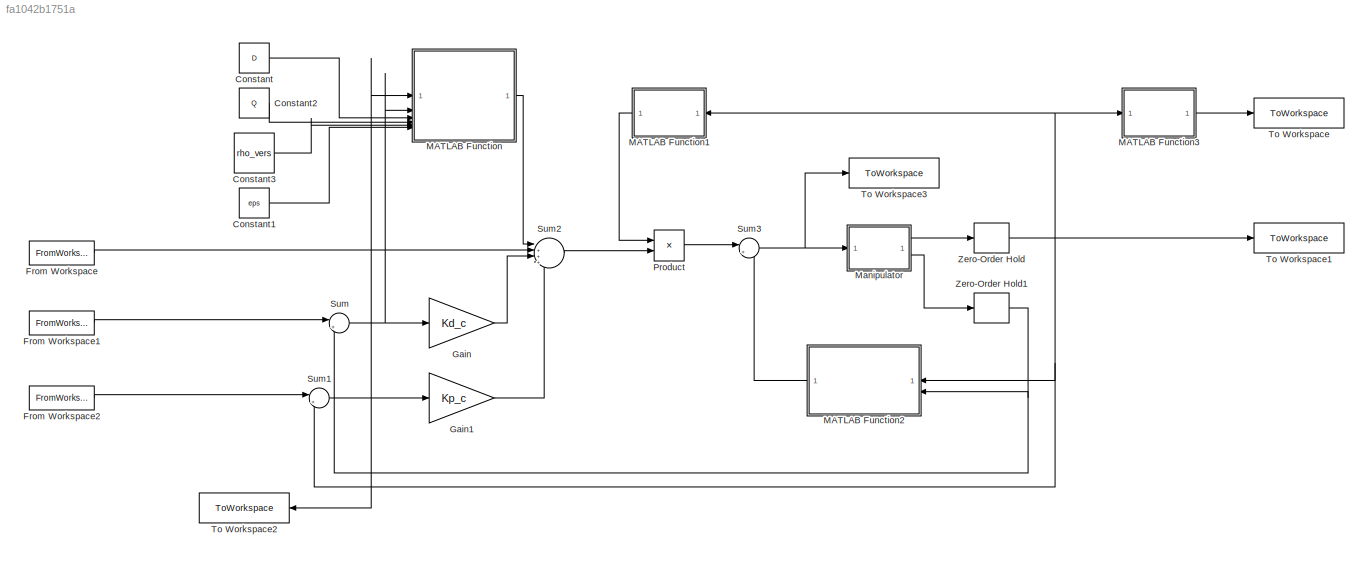
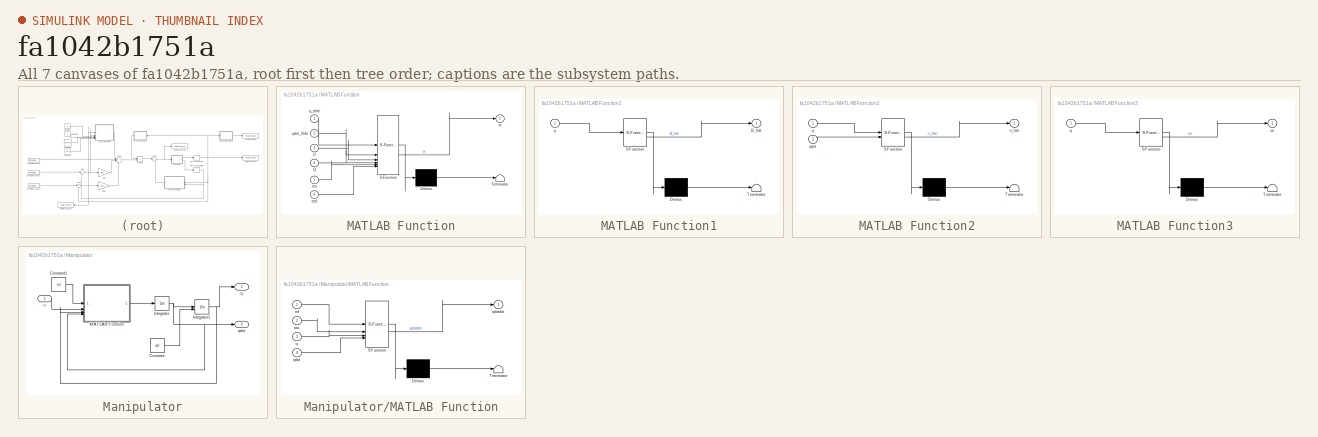
[diagram: thumbnail index - all 7 canvases of the model, root first then tree order]
MODEL slx_fa1042b1751a
KIND model
CONFIG AbsTol = auto
CONFIG EnableMultiTasking = off
CONFIG FixedStep = auto
CONFIG MaxStep = auto
CONFIG MinStep = auto
CONFIG RelTol = 1e-3
CONFIG SampleTimeConstraint = Unconstrained
CONFIG SolverName = VariableStepAuto
CONFIG StartTime = 0.0
CONFIG StopTime = 50
BLOCK [Constant] Constant
  Value = D
BLOCK [Constant] Constant1
  Value = eps
BLOCK [Constant] Constant2
  Value = Q
BLOCK [Constant] Constant3
  Value = rho_vers
BLOCK [FromWorkspace] From Workspace
  SampleTime = Tc
  VariableName = qddotdot
BLOCK [FromWorkspace] From Workspace1
  SampleTime = Tc
  VariableName = qddot
BLOCK [FromWorkspace] From Workspace2
  SampleTime = Tc
  VariableName = qd
BLOCK [Gain] Gain
  Gain = Kd_c
  Multiplication = Matrix(K*u) (u vector)
BLOCK [Gain] Gain1
  Gain = Kp_c
  Multiplication = Matrix(K*u) (u vector)
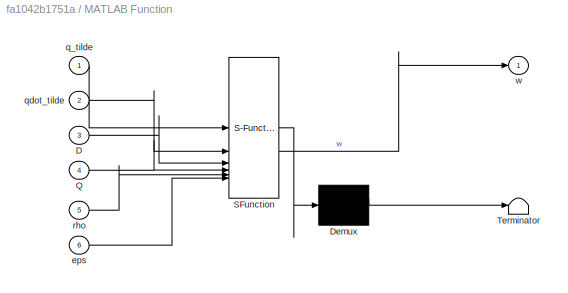
BLOCK [SubSystem] MATLAB Function
  ErrorFcn = Stateflow.Translate.translate
  PermitHierarchicalResolution = ExplicitOnly
  SFBlockType = MATLAB Function
  TreatAsAtomicUnit = on
BLOCK [Demux] MATLAB Function/ Demux 
  Outputs = 1
BLOCK [S-Function] MATLAB Function/ SFunction 
  EnableBusSupport = on
  FunctionName = sf_sfun
  PortCounts = [6 2]
  SFcnIsStateOwnerBlock = off
  SFunctionDeploymentMode = off
  Tag = Stateflow S-Function 5
BLOCK [Terminator] MATLAB Function/ Terminator 
BLOCK [Inport] MATLAB Function/D
  Port = 3
BLOCK [Inport] MATLAB Function/Q
  Port = 4
BLOCK [Inport] MATLAB Function/eps
  Port = 6
BLOCK [Inport] MATLAB Function/q_tilde
BLOCK [Inport] MATLAB Function/qdot_tilde
  Port = 2
BLOCK [Inport] MATLAB Function/rho
  Port = 5
BLOCK [Outport] MATLAB Function/w
BLOCK [SubSystem] MATLAB Function1
  ErrorFcn = Stateflow.Translate.translate
  NameLocation = top
  PermitHierarchicalResolution = ExplicitOnly
  SFBlockType = MATLAB Function
  TreatAsAtomicUnit = on
BLOCK [Demux] MATLAB Function1/ Demux 
  Outputs = 1
BLOCK [S-Function] MATLAB Function1/ SFunction 
  EnableBusSupport = on
  FunctionName = sf_sfun
  PortCounts = [1 2]
  SFcnIsStateOwnerBlock = off
  SFunctionDeploymentMode = off
  Tag = Stateflow S-Function 6
BLOCK [Terminator] MATLAB Function1/ Terminator 
BLOCK [Outport] MATLAB Function1/B_hat
BLOCK [Inport] MATLAB Function1/q
BLOCK [SubSystem] MATLAB Function2
  ErrorFcn = Stateflow.Translate.translate
  NameLocation = top
  PermitHierarchicalResolution = ExplicitOnly
  SFBlockType = MATLAB Function
  TreatAsAtomicUnit = on
BLOCK [Demux] MATLAB Function2/ Demux 
  Outputs = 1
BLOCK [S-Function] MATLAB Function2/ SFunction 
  EnableBusSupport = on
  FunctionName = sf_sfun
  PortCounts = [2 2]
  SFcnIsStateOwnerBlock = off
  SFunctionDeploymentMode = off
  Tag = Stateflow S-Function 7
BLOCK [Terminator] MATLAB Function2/ Terminator 
BLOCK [Outport] MATLAB Function2/n_hat
BLOCK [Inport] MATLAB Function2/q
BLOCK [Inport] MATLAB Function2/qdot
  Port = 2
BLOCK [SubSystem] MATLAB Function3
  ErrorFcn = Stateflow.Translate.translate
  PermitHierarchicalResolution = ExplicitOnly
  SFBlockType = MATLAB Function
  TreatAsAtomicUnit = on
BLOCK [Demux] MATLAB Function3/ Demux 
  Outputs = 1
BLOCK [S-Function] MATLAB Function3/ SFunction 
  EnableBusSupport = on
  FunctionName = sf_sfun
  PortCounts = [1 2]
  SFcnIsStateOwnerBlock = off
  SFunctionDeploymentMode = off
  Tag = Stateflow S-Function 9
BLOCK [Terminator] MATLAB Function3/ Terminator 
BLOCK [Inport] MATLAB Function3/q
BLOCK [Outport] MATLAB Function3/xe
BLOCK [SubSystem] Manipulator
BLOCK [Constant] Manipulator/Constant
  Value = q0
BLOCK [Constant] Manipulator/Constant1
  Value = ml
BLOCK [Integrator] Manipulator/Integrator
  InitialCondition = [0 0 0 0]'
BLOCK [Integrator] Manipulator/Integrator1
  InitialConditionSource = external
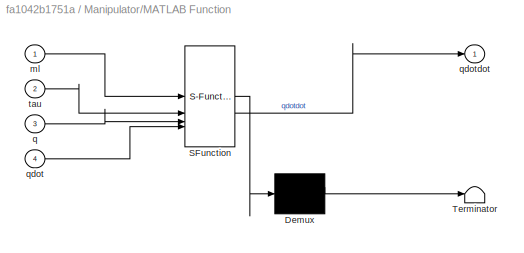
BLOCK [SubSystem] Manipulator/MATLAB Function
  ErrorFcn = Stateflow.Translate.translate
  PermitHierarchicalResolution = ExplicitOnly
  SFBlockType = MATLAB Function
  TreatAsAtomicUnit = on
BLOCK [Demux] Manipulator/MATLAB Function/ Demux 
  Outputs = 1
BLOCK [S-Function] Manipulator/MATLAB Function/ SFunction 
  EnableBusSupport = on
  FunctionName = sf_sfun
  PortCounts = [4 2]
  SFcnIsStateOwnerBlock = off
  SFunctionDeploymentMode = off
  Tag = Stateflow S-Function 8
BLOCK [Terminator] Manipulator/MATLAB Function/ Terminator 
BLOCK [Inport] Manipulator/MATLAB Function/ml
BLOCK [Inport] Manipulator/MATLAB Function/q
  Port = 3
BLOCK [Inport] Manipulator/MATLAB Function/qdot
  Port = 4
BLOCK [Outport] Manipulator/MATLAB Function/qdotdot
BLOCK [Inport] Manipulator/MATLAB Function/tau
  Port = 2
BLOCK [Outport] Manipulator/q
BLOCK [Outport] Manipulator/qdot
  Port = 2
BLOCK [Inport] Manipulator/u
BLOCK [Product] Product
  Multiplication = Matrix(*)
BLOCK [Sum] Sum
  Inputs = |+-
BLOCK [Sum] Sum1
  Inputs = |+-
BLOCK [Sum] Sum2
  Inputs = |++++
BLOCK [Sum] Sum3
  Inputs = |++
BLOCK [ToWorkspace] To Workspace
  FixptAsFi = on
  MaxDataPoints = inf
  SampleTime = -1
  SaveFormat = Structure With Time
  VariableName = xecont
BLOCK [ToWorkspace] To Workspace1
  FixptAsFi = on
  MaxDataPoints = inf
  SampleTime = -1
  SaveFormat = Structure With Time
  VariableName = qcont
BLOCK [ToWorkspace] To Workspace2
  FixptAsFi = on
  MaxDataPoints = inf
  SampleTime = -1
  SaveFormat = Structure With Time
  VariableName = qerror
BLOCK [ToWorkspace] To Workspace3
  FixptAsFi = on
  MaxDataPoints = inf
  SampleTime = -1
  SaveFormat = Structure With Time
  VariableName = control
BLOCK [ZeroOrderHold] Zero-Order Hold
  SampleTime = Tc
BLOCK [ZeroOrderHold] Zero-Order Hold1
  SampleTime = Tc
LINE Constant1:1 -> MATLAB Function:6
LINE Constant2:1 -> MATLAB Function:4
LINE Constant3:1 -> MATLAB Function:5
LINE Constant:1 -> MATLAB Function:3
LINE From Workspace1:1 -> Sum:1
LINE From Workspace2:1 -> Sum1:1
LINE From Workspace:1 -> Sum2:2
LINE Gain1:1 -> Sum2:4
LINE Gain:1 -> Sum2:3
LINE MATLAB Function1:1 -> Product:1
LINE MATLAB Function2:1 -> Sum3:2
LINE MATLAB Function3:1 -> To Workspace:1
LINE MATLAB Function:1 -> Sum2:1
LINE Manipulator/Constant1:1 -> Manipulator/MATLAB Function:1
LINE Manipulator/Constant:1 -> Manipulator/Integrator1:2
NET Manipulator/Integrator1:1 -> Manipulator/MATLAB Function:3, Manipulator/q:1
NET Manipulator/Integrator:1 -> Manipulator/Integrator1:1, Manipulator/MATLAB Function:4, Manipulator/qdot:1
LINE Manipulator/MATLAB Function:1 -> Manipulator/Integrator:1
LINE Manipulator/u:1 -> Manipulator/MATLAB Function:2
LINE Manipulator:1 -> Zero-Order Hold:1
LINE Manipulator:2 -> Zero-Order Hold1:1
LINE Product:1 -> Sum3:1
NET Sum1:1 -> Gain1:1, MATLAB Function:1, To Workspace2:1
LINE Sum2:1 -> Product:2
NET Sum3:1 -> Manipulator:1, To Workspace3:1
NET Sum:1 -> Gain:1, MATLAB Function:2
NET Zero-Order Hold1:1 -> MATLAB Function2:2, Sum:2
NET Zero-Order Hold:1 -> MATLAB Function1:1, MATLAB Function2:1, MATLAB Function3:1, Sum1:2, To Workspace1:1
note: NET lines group one-source signal fan-out (src -> all destinations, sorted); 1:1 wires keep LINE
CHART MATLAB Function states=1 transitions=1
  STATE_LABEL 'eML_blk_kernel()'
  STATE_LABEL "SCRIPT:\nfunction w = compute_w(q_tilde,qdot_tilde,D,Q,rho,eps)\n\nxi = [q_tilde;qdot_tilde];\nz = D'*Q*xi;\n\nif norm(z) >= eps\n    w = rho*(z/norm(z));\nelse\n    w = rho*(z/eps);\nend\n\nend"
CHART MATLAB Function1 states=1 transitions=1
  STATE_LABEL 'eML_blk_kernel()'
  STATE_LABEL 'SCRIPT:\nfunction B_hat = compute_B_hat(q)\na1= 0.5; %m\na2= 0.5; %m\n\nl1=0.25; %m\nl2 =0.25; %m\nml1=20; %kg\nml2=20; %kg\nml3=10; %kg\nml4=0; %kg\nIl1=4; %kg*m2\nIl2=4; %kg*m2\nIl3=0;\nIl4=1; %kg*m2\nkr1=1;\nkr2=1;\nkr3=50; %rad/m\nkr4 =20;\nIm1=0.01; %kg*m2\nIm2=0.01; %kg*m2\nIm3=0.005; %kg*m2\nIm4=0.001 ;%kg*m2\nFm1=0.00005; %N*m*s/rad\nFm2=0.00005; %N*m*s/rad\nFm3 =0.01; %N*m*s/rad\nFm4 =0.005; %N*m*s/rad\n\nmm1=0;\nmm2...<+900ch>'
CHART MATLAB Function2 states=1 transitions=1
  STATE_LABEL 'eML_blk_kernel()'
  STATE_LABEL "SCRIPT:\nfunction n_hat = compute_n_hat(q,qdot)\n\na1=0.5;\na2=0.5;\nl1=0.25;\nl2=0.25;\nml1=20;\nml2=20;\nml3=10;\nIl1=4;\nIl2=4;\nIl4=1;\nkr1=1;\nkr2=1;\nkr3=50;\nkr4=20;\nIm1=0.01;\nIm2=0.01;\nIm3=0.005;\nIm4=0.001;\nFm1=0.00005;\nFm2=0.00005;\nFm3=0.01;\nFm4=0.005;\n\n \ng=[0 0 9.81*(ml3) 0]';\n\nFv=diag([kr1^2*Fm1,kr2^2*Fm2,kr3^2*Fm3,kr4^2*Fm4]);\n\nn_hat = Fv*qdot+g; %non compenso i termini di coriolis\nend"
CHART Manipulator/MATLAB Function states=1 transitions=1
  STATE_LABEL 'eML_blk_kernel()'
  STATE_LABEL 'SCRIPT:\nfunction qdotdot= dinamica_diretta(ml,tau,q,qdot)\n\na1= 0.5; %m\na2= 0.5; %m\n\nl1=0.25; %m\nl2 =0.25; %m\nml1=20; %kg\nml2=20; %kg\nml3=10; %kg\nml4=0; %kg\nIl1=4; %kg*m2\nIl2=4; %kg*m2\nIl3=0;\nIl4=1; %kg*m2\nkr1=1;\nkr2=1;\nkr3=50; %rad/m\nkr4 =20;\nIm1=0.01; %kg*m2\nIm2=0.01; %kg*m2\nIm3=0.005; %kg*m2\nIm4=0.001 ;%kg*m2\nFm1=0.00005; %N*m*s/rad\nFm2=0.00005; %N*m*s/rad\nFm3 =0.01; %N*m*s/rad\nFm4 =0.005; %N*m*...<+2023ch>'
CHART MATLAB Function3 states=1 transitions=1
  STATE_LABEL 'eML_blk_kernel()'
  STATE_LABEL 'SCRIPT:\nfunction xe = dirkin(q)\na1=0.5;\na2=a1;\nd0=1;\n\n\nxe=[a1*cos(q(1))+a2*cos(q(1)+q(2));...\n    a1*sin(q(1))+a2*sin(q(1)+q(2));...\n    d0+q(3);...\n    q(1)+q(2)+q(4)];\nend\n'
CHART  states=0 transitions=0
CHART  states=0 transitions=0
CHART  states=0 transitions=0
CHART  states=0 transitions=0
CHART  states=0 transitions=0
